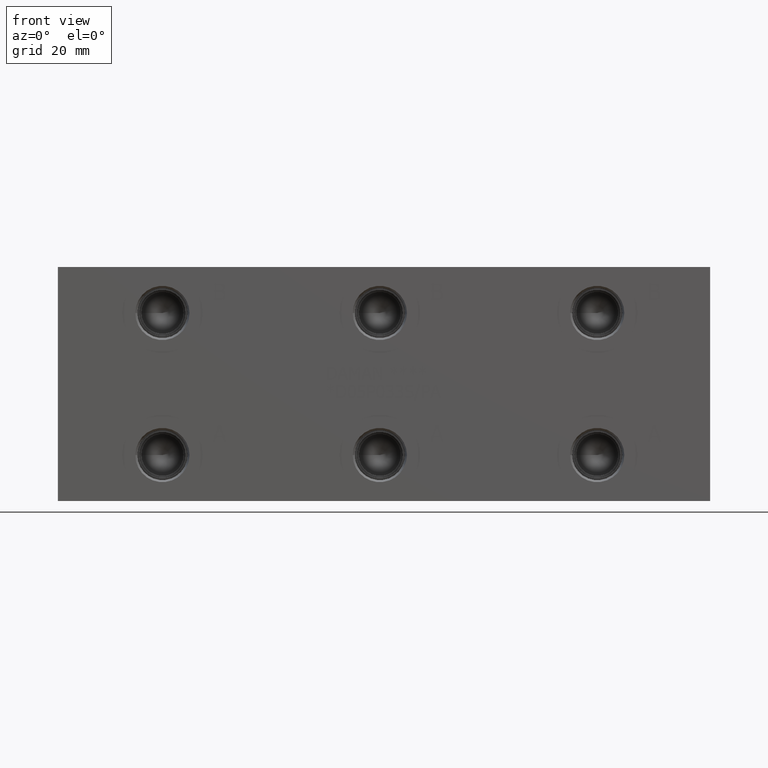
[diagram: clean part render]
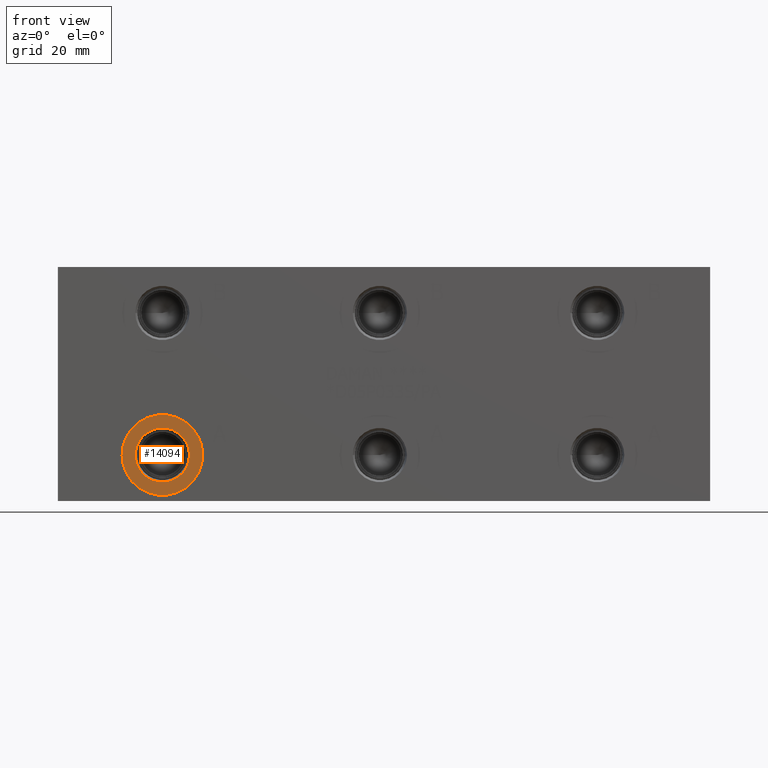
[diagram: same view with one face highlighted and labeled with its STEP entity id]
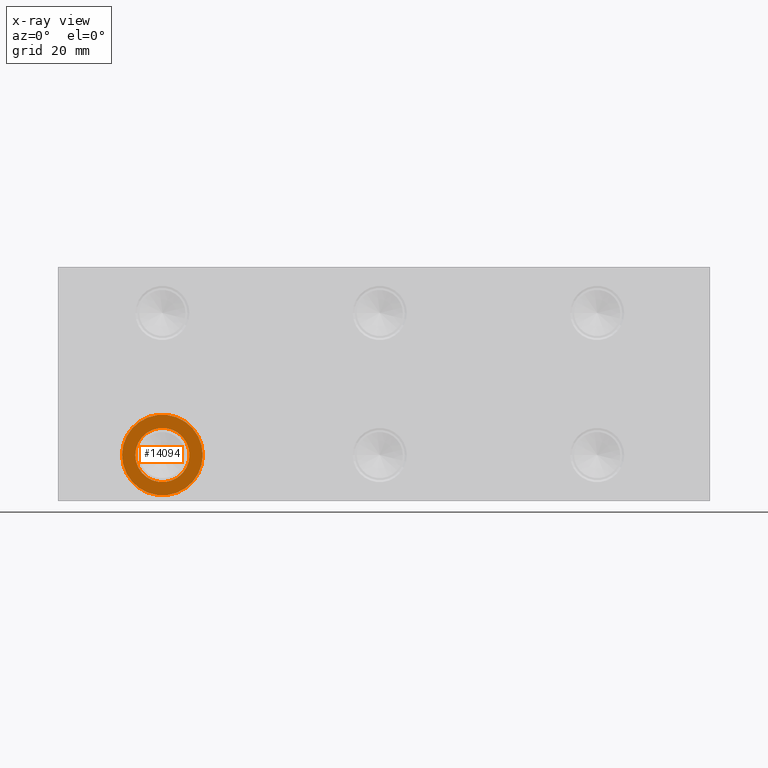
[diagram: x-ray of the same camera — body ghosted, the highlighted face saturated]
A machine part, front view. The second image highlights one B-rep face of the part: STEP entity #14094.
The next image is the same camera in x-ray: the body ghosted, the highlighted face saturated — about 0% of this face is hidden behind the body in this view.
In plain terms, the highlighted planar face has unit normal (0, 1, 0).
Its self-contained STEP definition (entity closure, byte-faithful):
#504=CIRCLE('',#14810,15.3162);
#505=CIRCLE('',#14811,15.3162);
#506=CIRCLE('',#14813,10.2997);
#507=CIRCLE('',#14814,10.2997);
#1153=FACE_BOUND('',#2623,.T.);
#1806=FACE_OUTER_BOUND('',#2622,.T.);
#2622=EDGE_LOOP('',(#11926,#11927));
#2623=EDGE_LOOP('',(#11928,#11929));
#6430=VERTEX_POINT('',#23967);
#6431=VERTEX_POINT('',#23969);
#6432=VERTEX_POINT('',#23973);
#6433=VERTEX_POINT('',#23974);
#8328=EDGE_CURVE('',#6430,#6431,#504,.T.);
#8329=EDGE_CURVE('',#6431,#6430,#505,.T.);
#8330=EDGE_CURVE('',#6432,#6433,#506,.T.);
#8331=EDGE_CURVE('',#6433,#6432,#507,.T.);
#11926=ORIENTED_EDGE('',*,*,#8329,.F.);
#11927=ORIENTED_EDGE('',*,*,#8328,.F.);
#11928=ORIENTED_EDGE('',*,*,#8330,.T.);
#11929=ORIENTED_EDGE('',*,*,#8331,.T.);
#12946=PLANE('',#14812);
#14094=ADVANCED_FACE('',(#1806,#1153),#12946,.F.);
#14810=AXIS2_PLACEMENT_3D('',#23970,#17447,#17448);
#14811=AXIS2_PLACEMENT_3D('',#23971,#17449,#17450);
#14812=AXIS2_PLACEMENT_3D('',#23972,#17451,#17452);
#14813=AXIS2_PLACEMENT_3D('',#23975,#17453,#17454);
#14814=AXIS2_PLACEMENT_3D('',#23976,#17455,#17456);
#17447=DIRECTION('center_axis',(0.,1.,0.));
#17448=DIRECTION('ref_axis',(1.,0.,0.));
#17449=DIRECTION('center_axis',(0.,1.,0.));
#17450=DIRECTION('ref_axis',(1.,0.,0.));
#17451=DIRECTION('center_axis',(0.,1.,0.));
#17452=DIRECTION('ref_axis',(0.,0.,1.));
#17453=DIRECTION('center_axis',(0.,1.,0.));
#17454=DIRECTION('ref_axis',(1.,0.,0.));
#17455=DIRECTION('center_axis',(0.,1.,0.));
#17456=DIRECTION('ref_axis',(1.,0.,0.));
#23967=CARTESIAN_POINT('',(24.3586,0.7874,17.4752));
#23969=CARTESIAN_POINT('',(54.991,0.7874,17.4752));
#23970=CARTESIAN_POINT('Origin',(39.6748,0.7874,17.4752));
#23971=CARTESIAN_POINT('Origin',(39.6748,0.7874,17.4752));
#23972=CARTESIAN_POINT('Origin',(49.9745,0.7874,17.4752));
#23973=CARTESIAN_POINT('',(49.9745,0.7874,17.4752));
#23974=CARTESIAN_POINT('',(29.3751,0.787400000000001,17.4752));
#23975=CARTESIAN_POINT('Origin',(39.6748,0.7874,17.4752));
#23976=CARTESIAN_POINT('Origin',(39.6748,0.7874,17.4752));